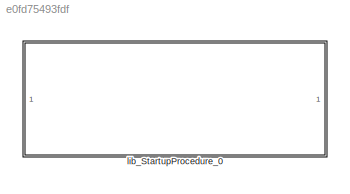
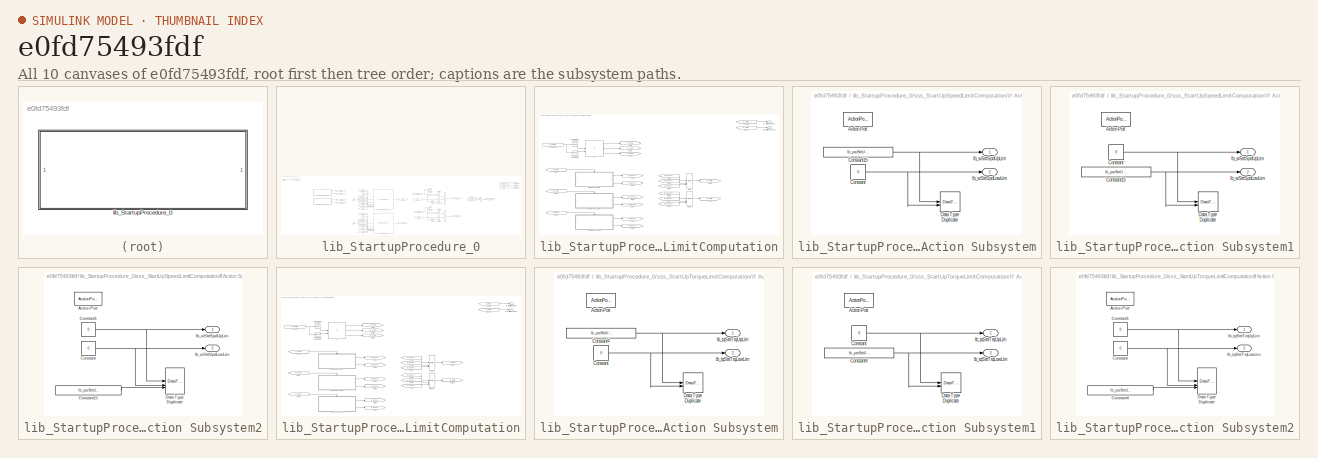
[diagram: thumbnail index - all 10 canvases of the model, root first then tree order]
MODEL slx_e0fd75493fdf
KIND library
CONFIG AbsTol = auto
CONFIG EnableMultiTasking = off
CONFIG FixedStep = auto
CONFIG MaxStep = auto
CONFIG MinStep = auto
CONFIG RelTol = 1e-3
CONFIG SampleTimeConstraint = Unconstrained
CONFIG SolverName = VariableStepAuto
CONFIG StartTime = 0.0
CONFIG StopTime = 10.0
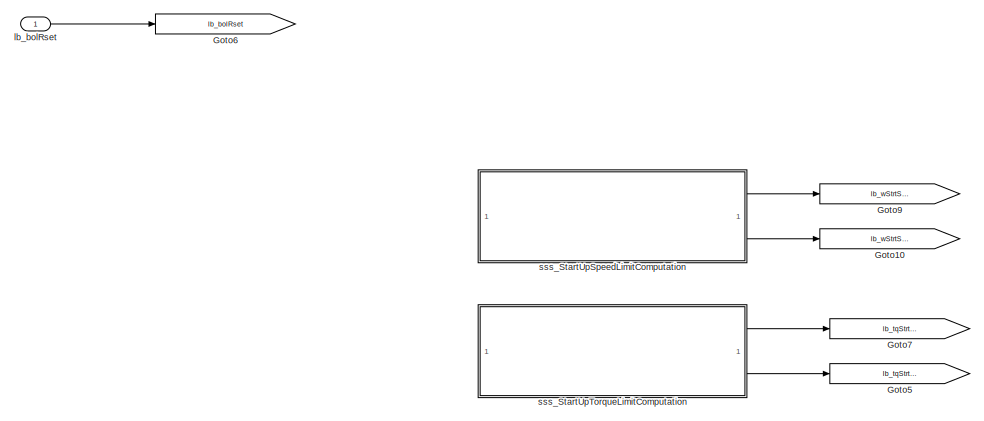
[diagram: lib_StartupProcedure_0 - part 1/4, top left region]
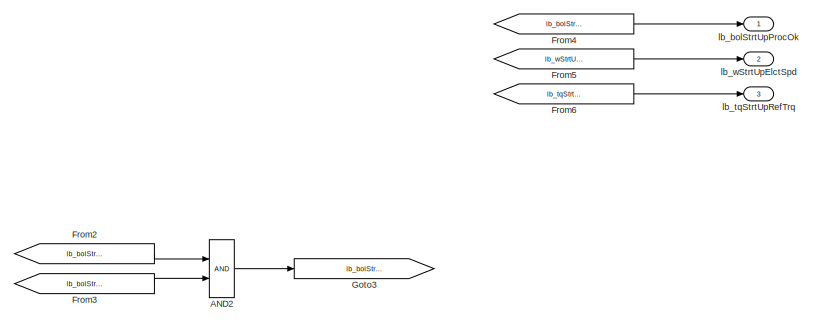
[diagram: lib_StartupProcedure_0 - part 2/4, top right region]
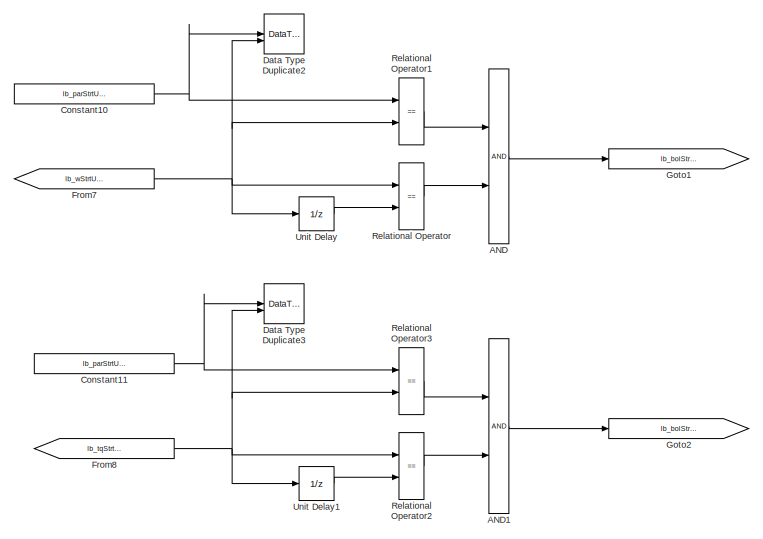
[diagram: lib_StartupProcedure_0 - part 3/4, central region]
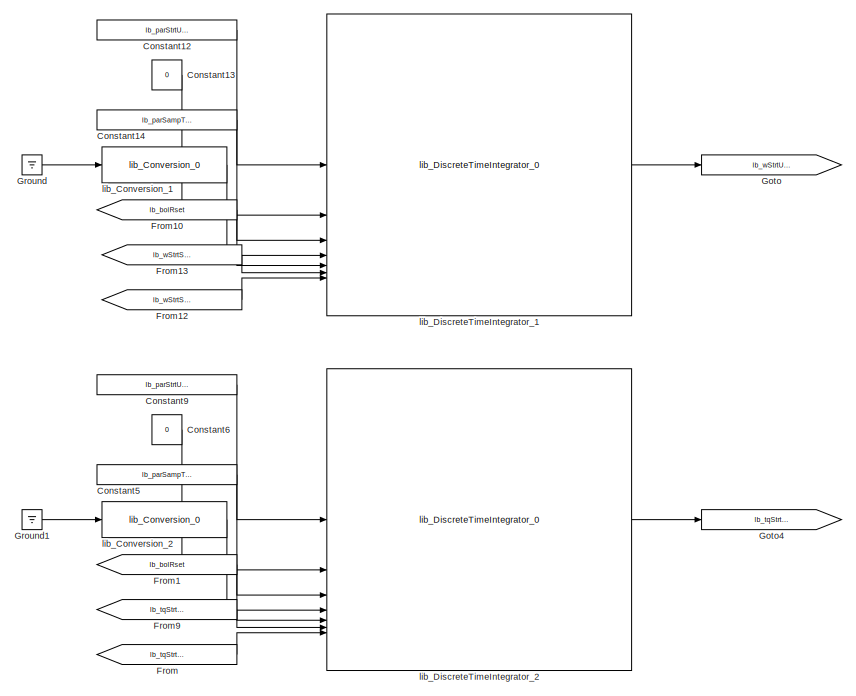
[diagram: lib_StartupProcedure_0 - part 4/4, center side, full height]
BLOCK [SubSystem] lib_StartupProcedure_0
BLOCK [Logic] lib_StartupProcedure_0/AND
  AllPortsSameDT = off
  OutDataTypeStr = boolean
BLOCK [Logic] lib_StartupProcedure_0/AND1
  AllPortsSameDT = off
  OutDataTypeStr = boolean
BLOCK [Logic] lib_StartupProcedure_0/AND2
  AllPortsSameDT = off
  OutDataTypeStr = boolean
BLOCK [Constant] lib_StartupProcedure_0/Constant10
  OutDataTypeStr = Inherit: Inherit via back propagation
  Value = lb_parStrtUpSpd
BLOCK [Constant] lib_StartupProcedure_0/Constant11
  OutDataTypeStr = Inherit: Inherit via back propagation
  Value = lb_parStrtUpTrq
BLOCK [Constant] lib_StartupProcedure_0/Constant12
  Value = lb_parStrtUpSpdRampCoef
BLOCK [Constant] lib_StartupProcedure_0/Constant13
  OutDataTypeStr = lb_parElctSpdDataType
  Value = 0
BLOCK [Constant] lib_StartupProcedure_0/Constant14
  Value = lb_parSampTime
BLOCK [Constant] lib_StartupProcedure_0/Constant5
  Value = lb_parSampTime
BLOCK [Constant] lib_StartupProcedure_0/Constant6
  OutDataTypeStr = lb_parTrqDataType
  Value = 0
BLOCK [Constant] lib_StartupProcedure_0/Constant9
  Value = lb_parStrtUpTrqRampCoef
BLOCK [DataTypeDuplicate] lib_StartupProcedure_0/Data Type Duplicate2
BLOCK [DataTypeDuplicate] lib_StartupProcedure_0/Data Type Duplicate3
BLOCK [From] lib_StartupProcedure_0/From
  GotoTag = lb_tqStrtTrqUpLim
BLOCK [From] lib_StartupProcedure_0/From1
  GotoTag = lb_bolRset
BLOCK [From] lib_StartupProcedure_0/From10
  GotoTag = lb_bolRset
BLOCK [From] lib_StartupProcedure_0/From12
  GotoTag = lb_wStrtSpdUpLim
BLOCK [From] lib_StartupProcedure_0/From13
  GotoTag = lb_wStrtSpdLowLim
BLOCK [From] lib_StartupProcedure_0/From2
  GotoTag = lb_bolStrtUpSpdOk
BLOCK [From] lib_StartupProcedure_0/From3
  GotoTag = lb_bolStrtTrqOk
BLOCK [From] lib_StartupProcedure_0/From4
  GotoTag = lb_bolStrtUpProcOk
BLOCK [From] lib_StartupProcedure_0/From5
  GotoTag = lb_wStrtUpElctSpd
BLOCK [From] lib_StartupProcedure_0/From6
  GotoTag = lb_tqStrtUpRefTrq
BLOCK [From] lib_StartupProcedure_0/From7
  GotoTag = lb_wStrtUpElctSpd
BLOCK [From] lib_StartupProcedure_0/From8
  GotoTag = lb_tqStrtUpRefTrq
BLOCK [From] lib_StartupProcedure_0/From9
  GotoTag = lb_tqStrtTrqLowLim
BLOCK [Goto] lib_StartupProcedure_0/Goto
  GotoTag = lb_wStrtUpElctSpd
BLOCK [Goto] lib_StartupProcedure_0/Goto1
  GotoTag = lb_bolStrtUpSpdOk
BLOCK [Goto] lib_StartupProcedure_0/Goto10
  GotoTag = lb_wStrtSpdLowLim
BLOCK [Goto] lib_StartupProcedure_0/Goto2
  GotoTag = lb_bolStrtTrqOk
BLOCK [Goto] lib_StartupProcedure_0/Goto3
  GotoTag = lb_bolStrtUpProcOk
BLOCK [Goto] lib_StartupProcedure_0/Goto4
  GotoTag = lb_tqStrtUpRefTrq
BLOCK [Goto] lib_StartupProcedure_0/Goto5
  GotoTag = lb_tqStrtTrqLowLim
BLOCK [Goto] lib_StartupProcedure_0/Goto6
  GotoTag = lb_bolRset
BLOCK [Goto] lib_StartupProcedure_0/Goto7
  GotoTag = lb_tqStrtTrqUpLim
BLOCK [Goto] lib_StartupProcedure_0/Goto9
  GotoTag = lb_wStrtSpdUpLim
BLOCK [Ground] lib_StartupProcedure_0/Ground
BLOCK [Ground] lib_StartupProcedure_0/Ground1
BLOCK [RelationalOperator] lib_StartupProcedure_0/Relational Operator
  InputSameDT = off
  Operator = ==
  OutDataTypeStr = boolean
  RndMeth = Simplest
BLOCK [RelationalOperator] lib_StartupProcedure_0/Relational Operator1
  InputSameDT = off
  Operator = ==
  OutDataTypeStr = boolean
  RndMeth = Simplest
BLOCK [RelationalOperator] lib_StartupProcedure_0/Relational Operator2
  InputSameDT = off
  Operator = ==
  OutDataTypeStr = boolean
  RndMeth = Simplest
BLOCK [RelationalOperator] lib_StartupProcedure_0/Relational Operator3
  InputSameDT = off
  Operator = ==
  OutDataTypeStr = boolean
  RndMeth = Simplest
BLOCK [UnitDelay] lib_StartupProcedure_0/Unit Delay
  HasFrameUpgradeWarning = on
  SampleTime = -1
BLOCK [UnitDelay] lib_StartupProcedure_0/Unit Delay1
  HasFrameUpgradeWarning = on
  SampleTime = -1
BLOCK [Inport] lib_StartupProcedure_0/lb_bolRset
BLOCK [Outport] lib_StartupProcedure_0/lb_bolStrtUpProcOk
BLOCK [Outport] lib_StartupProcedure_0/lb_tqStrtUpRefTrq
  Port = 3
BLOCK [Outport] lib_StartupProcedure_0/lb_wStrtUpElctSpd
  Port = 2
BLOCK [Reference] lib_StartupProcedure_0/lib_Conversion_1  REF=lib_conversion/lib_Conversion_0  (lib defined in slx_7f5c0202220d)
  SourceBlock = lib_conversion/lib_Conversion_0
BLOCK [Reference] lib_StartupProcedure_0/lib_Conversion_2  REF=lib_conversion/lib_Conversion_0  (lib defined in slx_7f5c0202220d)
  SourceBlock = lib_conversion/lib_Conversion_0
BLOCK [Reference] lib_StartupProcedure_0/lib_DiscreteTimeIntegrator_1  REF=lib_discrete_time_integrator/lib_DiscreteTimeIntegrator_0
  SourceBlock = lib_discrete_time_integrator/lib_DiscreteTimeIntegrator_0
BLOCK [Reference] lib_StartupProcedure_0/lib_DiscreteTimeIntegrator_2  REF=lib_discrete_time_integrator/lib_DiscreteTimeIntegrator_0
  SourceBlock = lib_discrete_time_integrator/lib_DiscreteTimeIntegrator_0
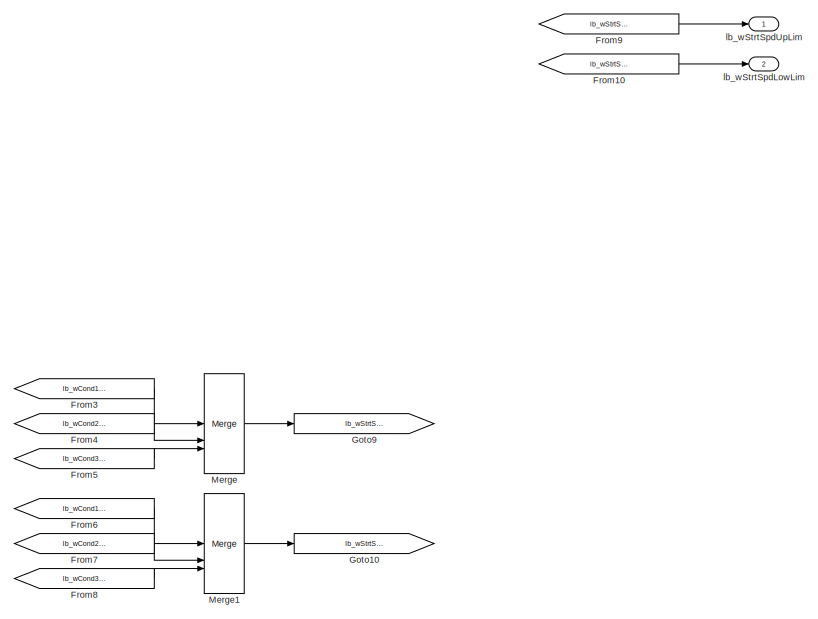
[diagram: lib_StartupProcedure_0/sss_StartUpSpeedLimitComputation - part 1/2, right side, full height]
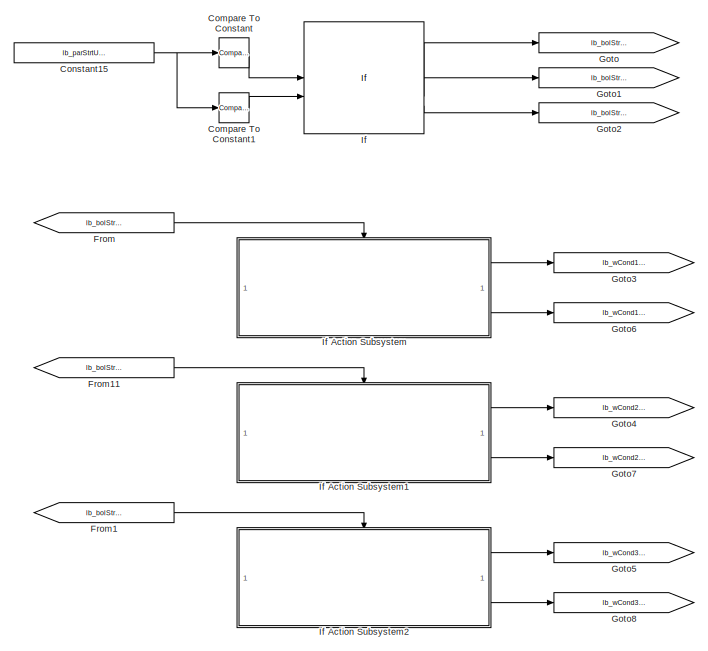
[diagram: lib_StartupProcedure_0/sss_StartUpSpeedLimitComputation - part 2/2, left side, full height]
BLOCK [SubSystem] lib_StartupProcedure_0/sss_StartUpSpeedLimitComputation
BLOCK [Reference] lib_StartupProcedure_0/sss_StartUpSpeedLimitComputation/Compare To Constant  REF=simulink/Logic and Bit
Operations/Compare
To Constant
  SourceBlock = simulink/Logic and Bit\nOperations/Compare\nTo Constant
  SourceType = Compare To Constant
BLOCK [Reference] lib_StartupProcedure_0/sss_StartUpSpeedLimitComputation/Compare To Constant1  REF=simulink/Logic and Bit
Operations/Compare
To Constant
  SourceBlock = simulink/Logic and Bit\nOperations/Compare\nTo Constant
  SourceType = Compare To Constant
BLOCK [Constant] lib_StartupProcedure_0/sss_StartUpSpeedLimitComputation/Constant15
  Value = lb_parStrtUpSpd
BLOCK [From] lib_StartupProcedure_0/sss_StartUpSpeedLimitComputation/From
  GotoTag = lb_bolStrtUpSpdCond1
BLOCK [From] lib_StartupProcedure_0/sss_StartUpSpeedLimitComputation/From1
  GotoTag = lb_bolStrtUpSpdCond3
BLOCK [From] lib_StartupProcedure_0/sss_StartUpSpeedLimitComputation/From10
  GotoTag = lb_wStrtSpdLowLim
BLOCK [From] lib_StartupProcedure_0/sss_StartUpSpeedLimitComputation/From11
  GotoTag = lb_bolStrtUpSpdCond2
BLOCK [From] lib_StartupProcedure_0/sss_StartUpSpeedLimitComputation/From3
  GotoTag = lb_wCond1StrtSpdUpLim
BLOCK [From] lib_StartupProcedure_0/sss_StartUpSpeedLimitComputation/From4
  GotoTag = lb_wCond2StrtSpdUpLim
BLOCK [From] lib_StartupProcedure_0/sss_StartUpSpeedLimitComputation/From5
  GotoTag = lb_wCond3StrtSpdUpLim
BLOCK [From] lib_StartupProcedure_0/sss_StartUpSpeedLimitComputation/From6
  GotoTag = lb_wCond1StrtSpdLowLim
BLOCK [From] lib_StartupProcedure_0/sss_StartUpSpeedLimitComputation/From7
  GotoTag = lb_wCond2StrtSpdLowLim
BLOCK [From] lib_StartupProcedure_0/sss_StartUpSpeedLimitComputation/From8
  GotoTag = lb_wCond3StrtSpdLowLim
BLOCK [From] lib_StartupProcedure_0/sss_StartUpSpeedLimitComputation/From9
  GotoTag = lb_wStrtSpdUpLim
BLOCK [Goto] lib_StartupProcedure_0/sss_StartUpSpeedLimitComputation/Goto
  GotoTag = lb_bolStrtUpSpdCond1
BLOCK [Goto] lib_StartupProcedure_0/sss_StartUpSpeedLimitComputation/Goto1
  GotoTag = lb_bolStrtUpSpdCond2
BLOCK [Goto] lib_StartupProcedure_0/sss_StartUpSpeedLimitComputation/Goto10
  GotoTag = lb_wStrtSpdLowLim
BLOCK [Goto] lib_StartupProcedure_0/sss_StartUpSpeedLimitComputation/Goto2
  GotoTag = lb_bolStrtUpSpdCond3
BLOCK [Goto] lib_StartupProcedure_0/sss_StartUpSpeedLimitComputation/Goto3
  GotoTag = lb_wCond1StrtSpdUpLim
BLOCK [Goto] lib_StartupProcedure_0/sss_StartUpSpeedLimitComputation/Goto4
  GotoTag = lb_wCond2StrtSpdUpLim
BLOCK [Goto] lib_StartupProcedure_0/sss_StartUpSpeedLimitComputation/Goto5
  GotoTag = lb_wCond3StrtSpdUpLim
BLOCK [Goto] lib_StartupProcedure_0/sss_StartUpSpeedLimitComputation/Goto6
  GotoTag = lb_wCond1StrtSpdLowLim
BLOCK [Goto] lib_StartupProcedure_0/sss_StartUpSpeedLimitComputation/Goto7
  GotoTag = lb_wCond2StrtSpdLowLim
BLOCK [Goto] lib_StartupProcedure_0/sss_StartUpSpeedLimitComputation/Goto8
  GotoTag = lb_wCond3StrtSpdLowLim
BLOCK [Goto] lib_StartupProcedure_0/sss_StartUpSpeedLimitComputation/Goto9
  GotoTag = lb_wStrtSpdUpLim
BLOCK [If] lib_StartupProcedure_0/sss_StartUpSpeedLimitComputation/If
  ElseIfExpressions = u2
  IfExpression = u1
  NumInputs = 2
BLOCK [SubSystem] lib_StartupProcedure_0/sss_StartUpSpeedLimitComputation/If Action Subsystem
  TreatAsAtomicUnit = on
BLOCK [ActionPort] lib_StartupProcedure_0/sss_StartUpSpeedLimitComputation/If Action Subsystem/Action Port
BLOCK [Constant] lib_StartupProcedure_0/sss_StartUpSpeedLimitComputation/If Action Subsystem/Constant
  OutDataTypeStr = Inherit: Inherit via back propagation
  Value = 0
BLOCK [Constant] lib_StartupProcedure_0/sss_StartUpSpeedLimitComputation/If Action Subsystem/Constant15
  Value = lb_parStrtUpSpd
BLOCK [DataTypeDuplicate] lib_StartupProcedure_0/sss_StartUpSpeedLimitComputation/If Action Subsystem/Data Type Duplicate
BLOCK [Outport] lib_StartupProcedure_0/sss_StartUpSpeedLimitComputation/If Action Subsystem/lb_wStrtSpdLowLim
  Port = 2
BLOCK [Outport] lib_StartupProcedure_0/sss_StartUpSpeedLimitComputation/If Action Subsystem/lb_wStrtSpdUpLim
BLOCK [SubSystem] lib_StartupProcedure_0/sss_StartUpSpeedLimitComputation/If Action Subsystem1
  TreatAsAtomicUnit = on
BLOCK [ActionPort] lib_StartupProcedure_0/sss_StartUpSpeedLimitComputation/If Action Subsystem1/Action Port
BLOCK [Constant] lib_StartupProcedure_0/sss_StartUpSpeedLimitComputation/If Action Subsystem1/Constant
  OutDataTypeStr = Inherit: Inherit via back propagation
  Value = 0
BLOCK [Constant] lib_StartupProcedure_0/sss_StartUpSpeedLimitComputation/If Action Subsystem1/Constant15
  Value = lb_parStrtUpSpd
BLOCK [DataTypeDuplicate] lib_StartupProcedure_0/sss_StartUpSpeedLimitComputation/If Action Subsystem1/Data Type Duplicate
BLOCK [Outport] lib_StartupProcedure_0/sss_StartUpSpeedLimitComputation/If Action Subsystem1/lb_wStrtSpdLowLim
  Port = 2
BLOCK [Outport] lib_StartupProcedure_0/sss_StartUpSpeedLimitComputation/If Action Subsystem1/lb_wStrtSpdUpLim
BLOCK [SubSystem] lib_StartupProcedure_0/sss_StartUpSpeedLimitComputation/If Action Subsystem2
  TreatAsAtomicUnit = on
BLOCK [ActionPort] lib_StartupProcedure_0/sss_StartUpSpeedLimitComputation/If Action Subsystem2/Action Port
BLOCK [Constant] lib_StartupProcedure_0/sss_StartUpSpeedLimitComputation/If Action Subsystem2/Constant
  OutDataTypeStr = Inherit: Inherit via back propagation
  Value = 0
BLOCK [Constant] lib_StartupProcedure_0/sss_StartUpSpeedLimitComputation/If Action Subsystem2/Constant1
  OutDataTypeStr = Inherit: Inherit via back propagation
  Value = 0
BLOCK [Constant] lib_StartupProcedure_0/sss_StartUpSpeedLimitComputation/If Action Subsystem2/Constant15
  Value = lb_parStrtUpSpd
BLOCK [DataTypeDuplicate] lib_StartupProcedure_0/sss_StartUpSpeedLimitComputation/If Action Subsystem2/Data Type Duplicate
  NumInputPorts = 3
BLOCK [Outport] lib_StartupProcedure_0/sss_StartUpSpeedLimitComputation/If Action Subsystem2/lb_wStrtSpdLowLim
  Port = 2
BLOCK [Outport] lib_StartupProcedure_0/sss_StartUpSpeedLimitComputation/If Action Subsystem2/lb_wStrtSpdUpLim
BLOCK [Merge] lib_StartupProcedure_0/sss_StartUpSpeedLimitComputation/Merge
  Inputs = 3
BLOCK [Merge] lib_StartupProcedure_0/sss_StartUpSpeedLimitComputation/Merge1
  Inputs = 3
BLOCK [Outport] lib_StartupProcedure_0/sss_StartUpSpeedLimitComputation/lb_wStrtSpdLowLim
  Port = 2
BLOCK [Outport] lib_StartupProcedure_0/sss_StartUpSpeedLimitComputation/lb_wStrtSpdUpLim
BLOCK [SubSystem] lib_StartupProcedure_0/sss_StartUpTorqueLimitComputation
BLOCK [Reference] lib_StartupProcedure_0/sss_StartUpTorqueLimitComputation/Compare To Constant  REF=simulink/Logic and Bit
Operations/Compare
To Constant
  SourceBlock = simulink/Logic and Bit\nOperations/Compare\nTo Constant
  SourceType = Compare To Constant
BLOCK [Reference] lib_StartupProcedure_0/sss_StartUpTorqueLimitComputation/Compare To Constant1  REF=simulink/Logic and Bit
Operations/Compare
To Constant
  SourceBlock = simulink/Logic and Bit\nOperations/Compare\nTo Constant
  SourceType = Compare To Constant
BLOCK [Constant] lib_StartupProcedure_0/sss_StartUpTorqueLimitComputation/Constant4
  Value = lb_parStrtUpTrq
BLOCK [From] lib_StartupProcedure_0/sss_StartUpTorqueLimitComputation/From
  GotoTag = lb_bolStrtUpTrqCond2
BLOCK [From] lib_StartupProcedure_0/sss_StartUpTorqueLimitComputation/From1
  GotoTag = lb_bolStrtUpTrqCond3
BLOCK [From] lib_StartupProcedure_0/sss_StartUpTorqueLimitComputation/From10
  GotoTag = lb_tqStrtTrqLowLim
BLOCK [From] lib_StartupProcedure_0/sss_StartUpTorqueLimitComputation/From11
  GotoTag = lb_bolStrtUpTrqCond1
BLOCK [From] lib_StartupProcedure_0/sss_StartUpTorqueLimitComputation/From2
  GotoTag = lb_tqCond1StrtTrqLowLim
BLOCK [From] lib_StartupProcedure_0/sss_StartUpTorqueLimitComputation/From3
  GotoTag = lb_tqCond1StrtTrqUpLim
BLOCK [From] lib_StartupProcedure_0/sss_StartUpTorqueLimitComputation/From4
  GotoTag = lb_tqCond2StrtTrqLowLim
BLOCK [From] lib_StartupProcedure_0/sss_StartUpTorqueLimitComputation/From5
  GotoTag = lb_tqCond3StrtTrqLowLim
BLOCK [From] lib_StartupProcedure_0/sss_StartUpTorqueLimitComputation/From6
  GotoTag = lb_tqCond2StrtTrqUpLim
BLOCK [From] lib_StartupProcedure_0/sss_StartUpTorqueLimitComputation/From7
  GotoTag = lb_tqCond3StrtTrqUpLim
BLOCK [From] lib_StartupProcedure_0/sss_StartUpTorqueLimitComputation/From9
  GotoTag = lb_tqStrtTrqUpLim
BLOCK [Goto] lib_StartupProcedure_0/sss_StartUpTorqueLimitComputation/Goto
  GotoTag = lb_bolStrtUpTrqCond1
BLOCK [Goto] lib_StartupProcedure_0/sss_StartUpTorqueLimitComputation/Goto1
  GotoTag = lb_bolStrtUpTrqCond2
BLOCK [Goto] lib_StartupProcedure_0/sss_StartUpTorqueLimitComputation/Goto10
  GotoTag = lb_tqStrtTrqLowLim
BLOCK [Goto] lib_StartupProcedure_0/sss_StartUpTorqueLimitComputation/Goto2
  GotoTag = lb_bolStrtUpTrqCond3
BLOCK [Goto] lib_StartupProcedure_0/sss_StartUpTorqueLimitComputation/Goto3
  GotoTag = lb_tqCond1StrtTrqUpLim
BLOCK [Goto] lib_StartupProcedure_0/sss_StartUpTorqueLimitComputation/Goto4
  GotoTag = lb_tqCond2StrtTrqUpLim
BLOCK [Goto] lib_StartupProcedure_0/sss_StartUpTorqueLimitComputation/Goto5
  GotoTag = lb_tqCond3StrtTrqUpLim
BLOCK [Goto] lib_StartupProcedure_0/sss_StartUpTorqueLimitComputation/Goto6
  GotoTag = lb_tqCond1StrtTrqLowLim
BLOCK [Goto] lib_StartupProcedure_0/sss_StartUpTorqueLimitComputation/Goto7
  GotoTag = lb_tqCond2StrtTrqLowLim
BLOCK [Goto] lib_StartupProcedure_0/sss_StartUpTorqueLimitComputation/Goto8
  GotoTag = lb_tqCond3StrtTrqLowLim
BLOCK [Goto] lib_StartupProcedure_0/sss_StartUpTorqueLimitComputation/Goto9
  GotoTag = lb_tqStrtTrqUpLim
BLOCK [If] lib_StartupProcedure_0/sss_StartUpTorqueLimitComputation/If
  ElseIfExpressions = u2
  IfExpression = u1
  NumInputs = 2
BLOCK [SubSystem] lib_StartupProcedure_0/sss_StartUpTorqueLimitComputation/If Action Subsystem
  TreatAsAtomicUnit = on
BLOCK [ActionPort] lib_StartupProcedure_0/sss_StartUpTorqueLimitComputation/If Action Subsystem/Action Port
BLOCK [Constant] lib_StartupProcedure_0/sss_StartUpTorqueLimitComputation/If Action Subsystem/Constant
  OutDataTypeStr = Inherit: Inherit via back propagation
  Value = 0
BLOCK [Constant] lib_StartupProcedure_0/sss_StartUpTorqueLimitComputation/If Action Subsystem/Constant4
  Value = lb_parStrtUpTrq
BLOCK [DataTypeDuplicate] lib_StartupProcedure_0/sss_StartUpTorqueLimitComputation/If Action Subsystem/Data Type Duplicate
BLOCK [Outport] lib_StartupProcedure_0/sss_StartUpTorqueLimitComputation/If Action Subsystem/lb_tqStrtTrqLowLim
  Port = 2
BLOCK [Outport] lib_StartupProcedure_0/sss_StartUpTorqueLimitComputation/If Action Subsystem/lb_tqStrtTrqUpLim
BLOCK [SubSystem] lib_StartupProcedure_0/sss_StartUpTorqueLimitComputation/If Action Subsystem1
  TreatAsAtomicUnit = on
BLOCK [ActionPort] lib_StartupProcedure_0/sss_StartUpTorqueLimitComputation/If Action Subsystem1/Action Port
BLOCK [Constant] lib_StartupProcedure_0/sss_StartUpTorqueLimitComputation/If Action Subsystem1/Constant
  OutDataTypeStr = Inherit: Inherit via back propagation
  Value = 0
BLOCK [Constant] lib_StartupProcedure_0/sss_StartUpTorqueLimitComputation/If Action Subsystem1/Constant4
  Value = lb_parStrtUpTrq
BLOCK [DataTypeDuplicate] lib_StartupProcedure_0/sss_StartUpTorqueLimitComputation/If Action Subsystem1/Data Type Duplicate
BLOCK [Outport] lib_StartupProcedure_0/sss_StartUpTorqueLimitComputation/If Action Subsystem1/lb_tqStrtTrqLowLim
  Port = 2
BLOCK [Outport] lib_StartupProcedure_0/sss_StartUpTorqueLimitComputation/If Action Subsystem1/lb_tqStrtTrqUpLim
BLOCK [SubSystem] lib_StartupProcedure_0/sss_StartUpTorqueLimitComputation/If Action Subsystem2
  TreatAsAtomicUnit = on
BLOCK [ActionPort] lib_StartupProcedure_0/sss_StartUpTorqueLimitComputation/If Action Subsystem2/Action Port
BLOCK [Constant] lib_StartupProcedure_0/sss_StartUpTorqueLimitComputation/If Action Subsystem2/Constant
  OutDataTypeStr = Inherit: Inherit via back propagation
  Value = 0
BLOCK [Constant] lib_StartupProcedure_0/sss_StartUpTorqueLimitComputation/If Action Subsystem2/Constant1
  OutDataTypeStr = Inherit: Inherit via back propagation
  Value = 0
BLOCK [Constant] lib_StartupProcedure_0/sss_StartUpTorqueLimitComputation/If Action Subsystem2/Constant4
  Value = lb_parStrtUpTrq
BLOCK [DataTypeDuplicate] lib_StartupProcedure_0/sss_StartUpTorqueLimitComputation/If Action Subsystem2/Data Type Duplicate
  NumInputPorts = 3
BLOCK [Outport] lib_StartupProcedure_0/sss_StartUpTorqueLimitComputation/If Action Subsystem2/lb_tqStrtTrqLowLim
  Port = 2
BLOCK [Outport] lib_StartupProcedure_0/sss_StartUpTorqueLimitComputation/If Action Subsystem2/lb_tqStrtTrqUpLim
BLOCK [Merge] lib_StartupProcedure_0/sss_StartUpTorqueLimitComputation/Merge
  Inputs = 3
BLOCK [Merge] lib_StartupProcedure_0/sss_StartUpTorqueLimitComputation/Merge1
  Inputs = 3
BLOCK [Outport] lib_StartupProcedure_0/sss_StartUpTorqueLimitComputation/lb_tqStrtTrqLowLim
  Port = 2
BLOCK [Outport] lib_StartupProcedure_0/sss_StartUpTorqueLimitComputation/lb_tqStrtTrqUpLim
LINE lib_StartupProcedure_0/AND1:1 -> lib_StartupProcedure_0/Goto2:1
LINE lib_StartupProcedure_0/AND2:1 -> lib_StartupProcedure_0/Goto3:1
LINE lib_StartupProcedure_0/AND:1 -> lib_StartupProcedure_0/Goto1:1
NET lib_StartupProcedure_0/Constant10:1 -> lib_StartupProcedure_0/Data Type Duplicate2:1, lib_StartupProcedure_0/Relational Operator1:1
NET lib_StartupProcedure_0/Constant11:1 -> lib_StartupProcedure_0/Data Type Duplicate3:1, lib_StartupProcedure_0/Relational Operator3:1
LINE lib_StartupProcedure_0/Constant12:1 -> lib_StartupProcedure_0/lib_DiscreteTimeIntegrator_1:1
LINE lib_StartupProcedure_0/Constant13:1 -> lib_StartupProcedure_0/lib_DiscreteTimeIntegrator_1:2
LINE lib_StartupProcedure_0/Constant14:1 -> lib_StartupProcedure_0/lib_DiscreteTimeIntegrator_1:3
LINE lib_StartupProcedure_0/Constant5:1 -> lib_StartupProcedure_0/lib_DiscreteTimeIntegrator_2:3
LINE lib_StartupProcedure_0/Constant6:1 -> lib_StartupProcedure_0/lib_DiscreteTimeIntegrator_2:2
LINE lib_StartupProcedure_0/Constant9:1 -> lib_StartupProcedure_0/lib_DiscreteTimeIntegrator_2:1
LINE lib_StartupProcedure_0/From10:1 -> lib_StartupProcedure_0/lib_DiscreteTimeIntegrator_1:5
LINE lib_StartupProcedure_0/From12:1 -> lib_StartupProcedure_0/lib_DiscreteTimeIntegrator_1:7
LINE lib_StartupProcedure_0/From13:1 -> lib_StartupProcedure_0/lib_DiscreteTimeIntegrator_1:6
LINE lib_StartupProcedure_0/From1:1 -> lib_StartupProcedure_0/lib_DiscreteTimeIntegrator_2:5
LINE lib_StartupProcedure_0/From2:1 -> lib_StartupProcedure_0/AND2:1
LINE lib_StartupProcedure_0/From3:1 -> lib_StartupProcedure_0/AND2:2
LINE lib_StartupProcedure_0/From4:1 -> lib_StartupProcedure_0/lb_bolStrtUpProcOk:1
LINE lib_StartupProcedure_0/From5:1 -> lib_StartupProcedure_0/lb_wStrtUpElctSpd:1
LINE lib_StartupProcedure_0/From6:1 -> lib_StartupProcedure_0/lb_tqStrtUpRefTrq:1
NET lib_StartupProcedure_0/From7:1 -> lib_StartupProcedure_0/Data Type Duplicate2:2, lib_StartupProcedure_0/Relational Operator1:2, lib_StartupProcedure_0/Relational Operator:1, lib_StartupProcedure_0/Unit Delay:1
NET lib_StartupProcedure_0/From8:1 -> lib_StartupProcedure_0/Data Type Duplicate3:2, lib_StartupProcedure_0/Relational Operator2:1, lib_StartupProcedure_0/Relational Operator3:2, lib_StartupProcedure_0/Unit Delay1:1
LINE lib_StartupProcedure_0/From9:1 -> lib_StartupProcedure_0/lib_DiscreteTimeIntegrator_2:6
LINE lib_StartupProcedure_0/From:1 -> lib_StartupProcedure_0/lib_DiscreteTimeIntegrator_2:7
LINE lib_StartupProcedure_0/Ground1:1 -> lib_StartupProcedure_0/lib_Conversion_2:1
LINE lib_StartupProcedure_0/Ground:1 -> lib_StartupProcedure_0/lib_Conversion_1:1
LINE lib_StartupProcedure_0/Relational Operator1:1 -> lib_StartupProcedure_0/AND:1
LINE lib_StartupProcedure_0/Relational Operator2:1 -> lib_StartupProcedure_0/AND1:2
LINE lib_StartupProcedure_0/Relational Operator3:1 -> lib_StartupProcedure_0/AND1:1
LINE lib_StartupProcedure_0/Relational Operator:1 -> lib_StartupProcedure_0/AND:2
LINE lib_StartupProcedure_0/Unit Delay1:1 -> lib_StartupProcedure_0/Relational Operator2:2
LINE lib_StartupProcedure_0/Unit Delay:1 -> lib_StartupProcedure_0/Relational Operator:2
LINE lib_StartupProcedure_0/lb_bolRset:1 -> lib_StartupProcedure_0/Goto6:1
LINE lib_StartupProcedure_0/lib_Conversion_1:1 -> lib_StartupProcedure_0/lib_DiscreteTimeIntegrator_1:4
LINE lib_StartupProcedure_0/lib_Conversion_2:1 -> lib_StartupProcedure_0/lib_DiscreteTimeIntegrator_2:4
LINE lib_StartupProcedure_0/lib_DiscreteTimeIntegrator_1:1 -> lib_StartupProcedure_0/Goto:1
LINE lib_StartupProcedure_0/lib_DiscreteTimeIntegrator_2:1 -> lib_StartupProcedure_0/Goto4:1
LINE lib_StartupProcedure_0/sss_StartUpSpeedLimitComputation/Compare To Constant1:1 -> lib_StartupProcedure_0/sss_StartUpSpeedLimitComputation/If:2
LINE lib_StartupProcedure_0/sss_StartUpSpeedLimitComputation/Compare To Constant:1 -> lib_StartupProcedure_0/sss_StartUpSpeedLimitComputation/If:1
NET lib_StartupProcedure_0/sss_StartUpSpeedLimitComputation/Constant15:1 -> lib_StartupProcedure_0/sss_StartUpSpeedLimitComputation/Compare To Constant1:1, lib_StartupProcedure_0/sss_StartUpSpeedLimitComputation/Compare To Constant:1
LINE lib_StartupProcedure_0/sss_StartUpSpeedLimitComputation/From10:1 -> lib_StartupProcedure_0/sss_StartUpSpeedLimitComputation/lb_wStrtSpdLowLim:1
LINE lib_StartupProcedure_0/sss_StartUpSpeedLimitComputation/From11:1 -> lib_StartupProcedure_0/sss_StartUpSpeedLimitComputation/If Action Subsystem1:ifaction
LINE lib_StartupProcedure_0/sss_StartUpSpeedLimitComputation/From1:1 -> lib_StartupProcedure_0/sss_StartUpSpeedLimitComputation/If Action Subsystem2:ifaction
LINE lib_StartupProcedure_0/sss_StartUpSpeedLimitComputation/From3:1 -> lib_StartupProcedure_0/sss_StartUpSpeedLimitComputation/Merge:1
LINE lib_StartupProcedure_0/sss_StartUpSpeedLimitComputation/From4:1 -> lib_StartupProcedure_0/sss_StartUpSpeedLimitComputation/Merge:2
LINE lib_StartupProcedure_0/sss_StartUpSpeedLimitComputation/From5:1 -> lib_StartupProcedure_0/sss_StartUpSpeedLimitComputation/Merge:3
LINE lib_StartupProcedure_0/sss_StartUpSpeedLimitComputation/From6:1 -> lib_StartupProcedure_0/sss_StartUpSpeedLimitComputation/Merge1:1
LINE lib_StartupProcedure_0/sss_StartUpSpeedLimitComputation/From7:1 -> lib_StartupProcedure_0/sss_StartUpSpeedLimitComputation/Merge1:2
LINE lib_StartupProcedure_0/sss_StartUpSpeedLimitComputation/From8:1 -> lib_StartupProcedure_0/sss_StartUpSpeedLimitComputation/Merge1:3
LINE lib_StartupProcedure_0/sss_StartUpSpeedLimitComputation/From9:1 -> lib_StartupProcedure_0/sss_StartUpSpeedLimitComputation/lb_wStrtSpdUpLim:1
LINE lib_StartupProcedure_0/sss_StartUpSpeedLimitComputation/From:1 -> lib_StartupProcedure_0/sss_StartUpSpeedLimitComputation/If Action Subsystem:ifaction
NET lib_StartupProcedure_0/sss_StartUpSpeedLimitComputation/If Action Subsystem/Constant15:1 -> lib_StartupProcedure_0/sss_StartUpSpeedLimitComputation/If Action Subsystem/Data Type Duplicate:1, lib_StartupProcedure_0/sss_StartUpSpeedLimitComputation/If Action Subsystem/lb_wStrtSpdUpLim:1
NET lib_StartupProcedure_0/sss_StartUpSpeedLimitComputation/If Action Subsystem/Constant:1 -> lib_StartupProcedure_0/sss_StartUpSpeedLimitComputation/If Action Subsystem/Data Type Duplicate:2, lib_StartupProcedure_0/sss_StartUpSpeedLimitComputation/If Action Subsystem/lb_wStrtSpdLowLim:1
NET lib_StartupProcedure_0/sss_StartUpSpeedLimitComputation/If Action Subsystem1/Constant15:1 -> lib_StartupProcedure_0/sss_StartUpSpeedLimitComputation/If Action Subsystem1/Data Type Duplicate:2, lib_StartupProcedure_0/sss_StartUpSpeedLimitComputation/If Action Subsystem1/lb_wStrtSpdLowLim:1
NET lib_StartupProcedure_0/sss_StartUpSpeedLimitComputation/If Action Subsystem1/Constant:1 -> lib_StartupProcedure_0/sss_StartUpSpeedLimitComputation/If Action Subsystem1/Data Type Duplicate:1, lib_StartupProcedure_0/sss_StartUpSpeedLimitComputation/If Action Subsystem1/lb_wStrtSpdUpLim:1
LINE lib_StartupProcedure_0/sss_StartUpSpeedLimitComputation/If Action Subsystem1:1 -> lib_StartupProcedure_0/sss_StartUpSpeedLimitComputation/Goto4:1
LINE lib_StartupProcedure_0/sss_StartUpSpeedLimitComputation/If Action Subsystem1:2 -> lib_StartupProcedure_0/sss_StartUpSpeedLimitComputation/Goto7:1
LINE lib_StartupProcedure_0/sss_StartUpSpeedLimitComputation/If Action Subsystem2/Constant15:1 -> lib_StartupProcedure_0/sss_StartUpSpeedLimitComputation/If Action Subsystem2/Data Type Duplicate:3
NET lib_StartupProcedure_0/sss_StartUpSpeedLimitComputation/If Action Subsystem2/Constant1:1 -> lib_StartupProcedure_0/sss_StartUpSpeedLimitComputation/If Action Subsystem2/Data Type Duplicate:1, lib_StartupProcedure_0/sss_StartUpSpeedLimitComputation/If Action Subsystem2/lb_wStrtSpdUpLim:1
NET lib_StartupProcedure_0/sss_StartUpSpeedLimitComputation/If Action Subsystem2/Constant:1 -> lib_StartupProcedure_0/sss_StartUpSpeedLimitComputation/If Action Subsystem2/Data Type Duplicate:2, lib_StartupProcedure_0/sss_StartUpSpeedLimitComputation/If Action Subsystem2/lb_wStrtSpdLowLim:1
LINE lib_StartupProcedure_0/sss_StartUpSpeedLimitComputation/If Action Subsystem2:1 -> lib_StartupProcedure_0/sss_StartUpSpeedLimitComputation/Goto5:1
LINE lib_StartupProcedure_0/sss_StartUpSpeedLimitComputation/If Action Subsystem2:2 -> lib_StartupProcedure_0/sss_StartUpSpeedLimitComputation/Goto8:1
LINE lib_StartupProcedure_0/sss_StartUpSpeedLimitComputation/If Action Subsystem:1 -> lib_StartupProcedure_0/sss_StartUpSpeedLimitComputation/Goto3:1
LINE lib_StartupProcedure_0/sss_StartUpSpeedLimitComputation/If Action Subsystem:2 -> lib_StartupProcedure_0/sss_StartUpSpeedLimitComputation/Goto6:1
LINE lib_StartupProcedure_0/sss_StartUpSpeedLimitComputation/If:1 -> lib_StartupProcedure_0/sss_StartUpSpeedLimitComputation/Goto:1
LINE lib_StartupProcedure_0/sss_StartUpSpeedLimitComputation/If:2 -> lib_StartupProcedure_0/sss_StartUpSpeedLimitComputation/Goto1:1
LINE lib_StartupProcedure_0/sss_StartUpSpeedLimitComputation/If:3 -> lib_StartupProcedure_0/sss_StartUpSpeedLimitComputation/Goto2:1
LINE lib_StartupProcedure_0/sss_StartUpSpeedLimitComputation/Merge1:1 -> lib_StartupProcedure_0/sss_StartUpSpeedLimitComputation/Goto10:1
LINE lib_StartupProcedure_0/sss_StartUpSpeedLimitComputation/Merge:1 -> lib_StartupProcedure_0/sss_StartUpSpeedLimitComputation/Goto9:1
LINE lib_StartupProcedure_0/sss_StartUpSpeedLimitComputation:1 -> lib_StartupProcedure_0/Goto9:1
LINE lib_StartupProcedure_0/sss_StartUpSpeedLimitComputation:2 -> lib_StartupProcedure_0/Goto10:1
LINE lib_StartupProcedure_0/sss_StartUpTorqueLimitComputation/Compare To Constant1:1 -> lib_StartupProcedure_0/sss_StartUpTorqueLimitComputation/If:2
LINE lib_StartupProcedure_0/sss_StartUpTorqueLimitComputation/Compare To Constant:1 -> lib_StartupProcedure_0/sss_StartUpTorqueLimitComputation/If:1
NET lib_StartupProcedure_0/sss_StartUpTorqueLimitComputation/Constant4:1 -> lib_StartupProcedure_0/sss_StartUpTorqueLimitComputation/Compare To Constant1:1, lib_StartupProcedure_0/sss_StartUpTorqueLimitComputation/Compare To Constant:1
LINE lib_StartupProcedure_0/sss_StartUpTorqueLimitComputation/From10:1 -> lib_StartupProcedure_0/sss_StartUpTorqueLimitComputation/lb_tqStrtTrqLowLim:1
LINE lib_StartupProcedure_0/sss_StartUpTorqueLimitComputation/From11:1 -> lib_StartupProcedure_0/sss_StartUpTorqueLimitComputation/If Action Subsystem:ifaction
LINE lib_StartupProcedure_0/sss_StartUpTorqueLimitComputation/From1:1 -> lib_StartupProcedure_0/sss_StartUpTorqueLimitComputation/If Action Subsystem2:ifaction
LINE lib_StartupProcedure_0/sss_StartUpTorqueLimitComputation/From2:1 -> lib_StartupProcedure_0/sss_StartUpTorqueLimitComputation/Merge1:1
LINE lib_StartupProcedure_0/sss_StartUpTorqueLimitComputation/From3:1 -> lib_StartupProcedure_0/sss_StartUpTorqueLimitComputation/Merge:1
LINE lib_StartupProcedure_0/sss_StartUpTorqueLimitComputation/From4:1 -> lib_StartupProcedure_0/sss_StartUpTorqueLimitComputation/Merge1:2
LINE lib_StartupProcedure_0/sss_StartUpTorqueLimitComputation/From5:1 -> lib_StartupProcedure_0/sss_StartUpTorqueLimitComputation/Merge1:3
LINE lib_StartupProcedure_0/sss_StartUpTorqueLimitComputation/From6:1 -> lib_StartupProcedure_0/sss_StartUpTorqueLimitComputation/Merge:2
LINE lib_StartupProcedure_0/sss_StartUpTorqueLimitComputation/From7:1 -> lib_StartupProcedure_0/sss_StartUpTorqueLimitComputation/Merge:3
LINE lib_StartupProcedure_0/sss_StartUpTorqueLimitComputation/From9:1 -> lib_StartupProcedure_0/sss_StartUpTorqueLimitComputation/lb_tqStrtTrqUpLim:1
LINE lib_StartupProcedure_0/sss_StartUpTorqueLimitComputation/From:1 -> lib_StartupProcedure_0/sss_StartUpTorqueLimitComputation/If Action Subsystem1:ifaction
NET lib_StartupProcedure_0/sss_StartUpTorqueLimitComputation/If Action Subsystem/Constant4:1 -> lib_StartupProcedure_0/sss_StartUpTorqueLimitComputation/If Action Subsystem/Data Type Duplicate:1, lib_StartupProcedure_0/sss_StartUpTorqueLimitComputation/If Action Subsystem/lb_tqStrtTrqUpLim:1
NET lib_StartupProcedure_0/sss_StartUpTorqueLimitComputation/If Action Subsystem/Constant:1 -> lib_StartupProcedure_0/sss_StartUpTorqueLimitComputation/If Action Subsystem/Data Type Duplicate:2, lib_StartupProcedure_0/sss_StartUpTorqueLimitComputation/If Action Subsystem/lb_tqStrtTrqLowLim:1
NET lib_StartupProcedure_0/sss_StartUpTorqueLimitComputation/If Action Subsystem1/Constant4:1 -> lib_StartupProcedure_0/sss_StartUpTorqueLimitComputation/If Action Subsystem1/Data Type Duplicate:2, lib_StartupProcedure_0/sss_StartUpTorqueLimitComputation/If Action Subsystem1/lb_tqStrtTrqLowLim:1
NET lib_StartupProcedure_0/sss_StartUpTorqueLimitComputation/If Action Subsystem1/Constant:1 -> lib_StartupProcedure_0/sss_StartUpTorqueLimitComputation/If Action Subsystem1/Data Type Duplicate:1, lib_StartupProcedure_0/sss_StartUpTorqueLimitComputation/If Action Subsystem1/lb_tqStrtTrqUpLim:1
LINE lib_StartupProcedure_0/sss_StartUpTorqueLimitComputation/If Action Subsystem1:1 -> lib_StartupProcedure_0/sss_StartUpTorqueLimitComputation/Goto4:1
LINE lib_StartupProcedure_0/sss_StartUpTorqueLimitComputation/If Action Subsystem1:2 -> lib_StartupProcedure_0/sss_StartUpTorqueLimitComputation/Goto7:1
NET lib_StartupProcedure_0/sss_StartUpTorqueLimitComputation/If Action Subsystem2/Constant1:1 -> lib_StartupProcedure_0/sss_StartUpTorqueLimitComputation/If Action Subsystem2/Data Type Duplicate:1, lib_StartupProcedure_0/sss_StartUpTorqueLimitComputation/If Action Subsystem2/lb_tqStrtTrqUpLim:1
LINE lib_StartupProcedure_0/sss_StartUpTorqueLimitComputation/If Action Subsystem2/Constant4:1 -> lib_StartupProcedure_0/sss_StartUpTorqueLimitComputation/If Action Subsystem2/Data Type Duplicate:3
NET lib_StartupProcedure_0/sss_StartUpTorqueLimitComputation/If Action Subsystem2/Constant:1 -> lib_StartupProcedure_0/sss_StartUpTorqueLimitComputation/If Action Subsystem2/Data Type Duplicate:2, lib_StartupProcedure_0/sss_StartUpTorqueLimitComputation/If Action Subsystem2/lb_tqStrtTrqLowLim:1
LINE lib_StartupProcedure_0/sss_StartUpTorqueLimitComputation/If Action Subsystem2:1 -> lib_StartupProcedure_0/sss_StartUpTorqueLimitComputation/Goto5:1
LINE lib_StartupProcedure_0/sss_StartUpTorqueLimitComputation/If Action Subsystem2:2 -> lib_StartupProcedure_0/sss_StartUpTorqueLimitComputation/Goto8:1
LINE lib_StartupProcedure_0/sss_StartUpTorqueLimitComputation/If Action Subsystem:1 -> lib_StartupProcedure_0/sss_StartUpTorqueLimitComputation/Goto3:1
LINE lib_StartupProcedure_0/sss_StartUpTorqueLimitComputation/If Action Subsystem:2 -> lib_StartupProcedure_0/sss_StartUpTorqueLimitComputation/Goto6:1
LINE lib_StartupProcedure_0/sss_StartUpTorqueLimitComputation/If:1 -> lib_StartupProcedure_0/sss_StartUpTorqueLimitComputation/Goto:1
LINE lib_StartupProcedure_0/sss_StartUpTorqueLimitComputation/If:2 -> lib_StartupProcedure_0/sss_StartUpTorqueLimitComputation/Goto1:1
LINE lib_StartupProcedure_0/sss_StartUpTorqueLimitComputation/If:3 -> lib_StartupProcedure_0/sss_StartUpTorqueLimitComputation/Goto2:1
LINE lib_StartupProcedure_0/sss_StartUpTorqueLimitComputation/Merge1:1 -> lib_StartupProcedure_0/sss_StartUpTorqueLimitComputation/Goto10:1
LINE lib_StartupProcedure_0/sss_StartUpTorqueLimitComputation/Merge:1 -> lib_StartupProcedure_0/sss_StartUpTorqueLimitComputation/Goto9:1
LINE lib_StartupProcedure_0/sss_StartUpTorqueLimitComputation:1 -> lib_StartupProcedure_0/Goto7:1
LINE lib_StartupProcedure_0/sss_StartUpTorqueLimitComputation:2 -> lib_StartupProcedure_0/Goto5:1
note: NET lines group one-source signal fan-out (src -> all destinations, sorted); 1:1 wires keep LINE
